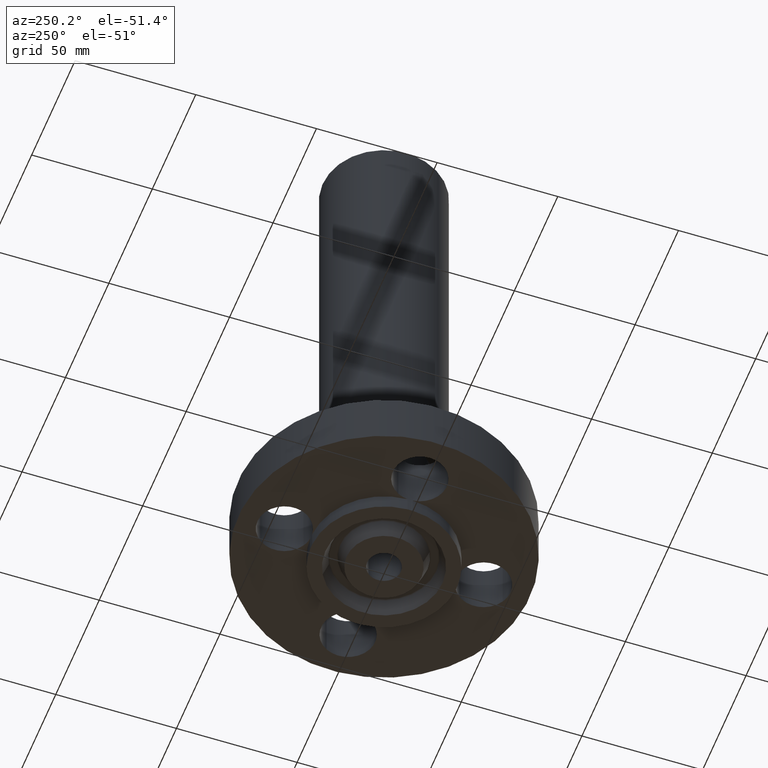
[diagram: clean part render]
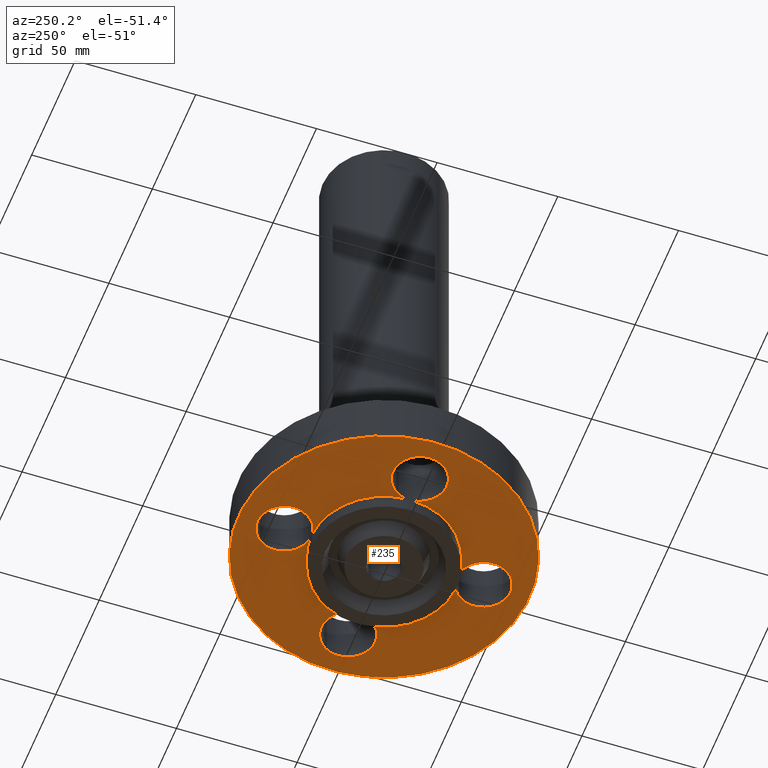
[diagram: same view with one face highlighted and labeled with its STEP entity id]
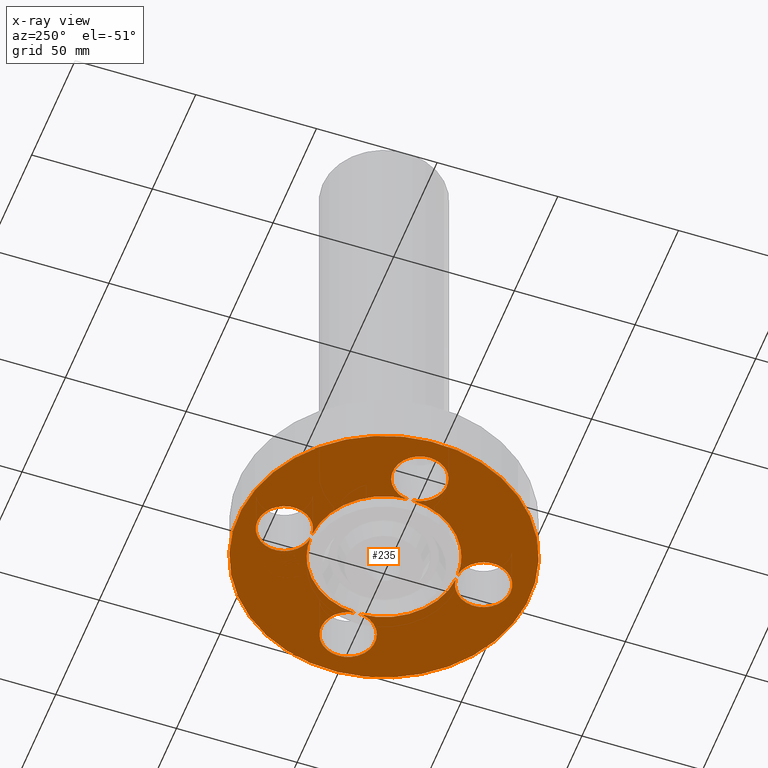
[diagram: x-ray of the same camera — body ghosted, the highlighted face saturated]
A machine part, auxiliary view. The second image highlights one B-rep face of the part: STEP entity #235.
The next image is the same camera in x-ray: the body ghosted, the highlighted face saturated — about 0% of this face is hidden behind the body in this view.
In plain terms, the highlighted planar face has unit normal (0, 0, -1).
Its self-contained STEP definition (entity closure, byte-faithful):
#65=AXIS2_PLACEMENT_3D('Circle Axis2P3D',#63,#64,$) ;
#78=AXIS2_PLACEMENT_3D('Plane Axis2P3D',#75,#76,#77) ;
#82=AXIS2_PLACEMENT_3D('Circle Axis2P3D',#80,#81,$) ;
#91=AXIS2_PLACEMENT_3D('Circle Axis2P3D',#89,#90,$) ;
#100=AXIS2_PLACEMENT_3D('Circle Axis2P3D',#98,#99,$) ;
#109=AXIS2_PLACEMENT_3D('Circle Axis2P3D',#107,#108,$) ;
#116=AXIS2_PLACEMENT_3D('Circle Axis2P3D',#114,#115,$) ;
#123=AXIS2_PLACEMENT_3D('Circle Axis2P3D',#121,#122,$) ;
#130=AXIS2_PLACEMENT_3D('Circle Axis2P3D',#128,#129,$) ;
#137=AXIS2_PLACEMENT_3D('Circle Axis2P3D',#135,#136,$) ;
#144=AXIS2_PLACEMENT_3D('Circle Axis2P3D',#142,#143,$) ;
#149=AXIS2_PLACEMENT_3D('Circle Axis2P3D',#147,#148,$) ;
#156=AXIS2_PLACEMENT_3D('Circle Axis2P3D',#154,#155,$) ;
#163=AXIS2_PLACEMENT_3D('Circle Axis2P3D',#161,#162,$) ;
#170=AXIS2_PLACEMENT_3D('Circle Axis2P3D',#168,#169,$) ;
#177=AXIS2_PLACEMENT_3D('Circle Axis2P3D',#175,#176,$) ;
#184=AXIS2_PLACEMENT_3D('Circle Axis2P3D',#182,#183,$) ;
#191=AXIS2_PLACEMENT_3D('Circle Axis2P3D',#189,#190,$) ;
#198=AXIS2_PLACEMENT_3D('Circle Axis2P3D',#196,#197,$) ;
#205=AXIS2_PLACEMENT_3D('Circle Axis2P3D',#203,#204,$) ;
#212=AXIS2_PLACEMENT_3D('Circle Axis2P3D',#210,#211,$) ;
#46=CARTESIAN_POINT('Vertex',(1.23886367277,-0.210947236987,2.2401153548E-016)) ;
#60=CARTESIAN_POINT('Vertex',(2.01113632724,0.210947236987,2.2401153548E-016)) ;
#63=CARTESIAN_POINT('Axis2P3D Location',(1.62500000001,0.,0.)) ;
#75=CARTESIAN_POINT('Axis2P3D Location',(0.,0.736137156452,0.)) ;
#80=CARTESIAN_POINT('Axis2P3D Location',(0.,0.,0.)) ;
#84=CARTESIAN_POINT('Vertex',(-1.13863565419,-2.0842585845,0.)) ;
#86=CARTESIAN_POINT('Vertex',(1.13863565419,2.0842585845,0.)) ;
#89=CARTESIAN_POINT('Axis2P3D Location',(0.,0.,0.)) ;
#98=CARTESIAN_POINT('Axis2P3D Location',(0.,0.,0.)) ;
#102=CARTESIAN_POINT('Vertex',(-0.569317827095,-1.04212929225,0.)) ;
#104=CARTESIAN_POINT('Vertex',(-1.186825,-0.0400333532821,-3.2782175924E-018)) ;
#107=CARTESIAN_POINT('Axis2P3D Location',(0.,0.,0.)) ;
#111=CARTESIAN_POINT('Vertex',(-0.0400333532821,-1.186825,1.42056095671E-017)) ;
#114=CARTESIAN_POINT('Axis2P3D Location',(-3.84644197508E-016,-1.62500000001,0.)) ;
#118=CARTESIAN_POINT('Vertex',(-0.210947236987,-1.23886367277,0.)) ;
#121=CARTESIAN_POINT('Axis2P3D Location',(-2.79741234551E-016,-1.62500000001,0.)) ;
#125=CARTESIAN_POINT('Vertex',(0.210947236987,-2.01113632724,2.2401153548E-016)) ;
#128=CARTESIAN_POINT('Axis2P3D Location',(-3.84644197508E-016,-1.62500000001,0.)) ;
#132=CARTESIAN_POINT('Vertex',(0.0400333532821,-1.186825,1.42056095671E-017)) ;
#135=CARTESIAN_POINT('Axis2P3D Location',(0.,0.,0.)) ;
#139=CARTESIAN_POINT('Vertex',(1.186825,-0.0400333532821,0.)) ;
#142=CARTESIAN_POINT('Axis2P3D Location',(1.62500000001,1.39870617276E-016,0.)) ;
#147=CARTESIAN_POINT('Axis2P3D Location',(1.62500000001,1.39870617276E-016,0.)) ;
#151=CARTESIAN_POINT('Vertex',(1.186825,0.0400333532821,0.)) ;
#154=CARTESIAN_POINT('Axis2P3D Location',(0.,0.,0.)) ;
#158=CARTESIAN_POINT('Vertex',(0.569317827095,1.04212929225,0.)) ;
#161=CARTESIAN_POINT('Axis2P3D Location',(0.,0.,0.)) ;
#165=CARTESIAN_POINT('Vertex',(0.0400333532821,1.186825,1.42056095671E-017)) ;
#168=CARTESIAN_POINT('Axis2P3D Location',(-2.09805925913E-016,1.62500000001,0.)) ;
#172=CARTESIAN_POINT('Vertex',(0.210947236987,1.23886367277,0.)) ;
#175=CARTESIAN_POINT('Axis2P3D Location',(-4.54579506146E-016,1.62500000001,0.)) ;
#179=CARTESIAN_POINT('Vertex',(-0.210947236987,2.01113632724,2.2401153548E-016)) ;
#182=CARTESIAN_POINT('Axis2P3D Location',(-2.09805925913E-016,1.62500000001,0.)) ;
#186=CARTESIAN_POINT('Vertex',(-0.0400333532821,1.186825,1.42056095671E-017)) ;
#189=CARTESIAN_POINT('Axis2P3D Location',(0.,0.,0.)) ;
#193=CARTESIAN_POINT('Vertex',(-1.186825,0.0400333532821,-3.2782175924E-018)) ;
#196=CARTESIAN_POINT('Axis2P3D Location',(-1.62500000001,-1.39870617276E-016,0.)) ;
#200=CARTESIAN_POINT('Vertex',(-1.23886367277,0.210947236987,0.)) ;
#203=CARTESIAN_POINT('Axis2P3D Location',(-1.62500000001,-1.39870617276E-016,0.)) ;
#207=CARTESIAN_POINT('Vertex',(-2.01113632724,-0.210947236987,2.2401153548E-016)) ;
#210=CARTESIAN_POINT('Axis2P3D Location',(-1.62500000001,-1.39870617276E-016,0.)) ;
#64=DIRECTION('Axis2P3D Direction',(0.,-0.,0.0393700787402)) ;
#76=DIRECTION('Axis2P3D Direction',(0.,0.,-0.0393700787402)) ;
#77=DIRECTION('Axis2P3D XDirection',(0.0393700787402,0.,0.)) ;
#81=DIRECTION('Axis2P3D Direction',(0.,0.,-0.0393700787402)) ;
#90=DIRECTION('Axis2P3D Direction',(0.,0.,-0.0393700787402)) ;
#99=DIRECTION('Axis2P3D Direction',(0.,0.,-0.0393700787402)) ;
#108=DIRECTION('Axis2P3D Direction',(0.,0.,-0.0393700787402)) ;
#115=DIRECTION('Axis2P3D Direction',(0.,0.,-0.0393700787402)) ;
#122=DIRECTION('Axis2P3D Direction',(0.,0.,-0.0393700787402)) ;
#129=DIRECTION('Axis2P3D Direction',(0.,0.,-0.0393700787402)) ;
#136=DIRECTION('Axis2P3D Direction',(0.,0.,-0.0393700787402)) ;
#143=DIRECTION('Axis2P3D Direction',(0.,0.,-0.0393700787402)) ;
#148=DIRECTION('Axis2P3D Direction',(0.,0.,-0.0393700787402)) ;
#155=DIRECTION('Axis2P3D Direction',(0.,0.,-0.0393700787402)) ;
#162=DIRECTION('Axis2P3D Direction',(0.,0.,-0.0393700787402)) ;
#169=DIRECTION('Axis2P3D Direction',(0.,0.,-0.0393700787402)) ;
#176=DIRECTION('Axis2P3D Direction',(0.,0.,-0.0393700787402)) ;
#183=DIRECTION('Axis2P3D Direction',(0.,0.,-0.0393700787402)) ;
#190=DIRECTION('Axis2P3D Direction',(0.,0.,-0.0393700787402)) ;
#197=DIRECTION('Axis2P3D Direction',(0.,0.,-0.0393700787402)) ;
#204=DIRECTION('Axis2P3D Direction',(0.,0.,-0.0393700787402)) ;
#211=DIRECTION('Axis2P3D Direction',(0.,0.,-0.0393700787402)) ;
#95=ORIENTED_EDGE('',*,*,#88,.T.) ;
#96=ORIENTED_EDGE('',*,*,#93,.T.) ;
#216=ORIENTED_EDGE('',*,*,#106,.F.) ;
#217=ORIENTED_EDGE('',*,*,#113,.F.) ;
#218=ORIENTED_EDGE('',*,*,#120,.F.) ;
#219=ORIENTED_EDGE('',*,*,#127,.F.) ;
#220=ORIENTED_EDGE('',*,*,#134,.F.) ;
#221=ORIENTED_EDGE('',*,*,#141,.F.) ;
#222=ORIENTED_EDGE('',*,*,#146,.F.) ;
#223=ORIENTED_EDGE('',*,*,#67,.F.) ;
#224=ORIENTED_EDGE('',*,*,#153,.F.) ;
#225=ORIENTED_EDGE('',*,*,#160,.F.) ;
#226=ORIENTED_EDGE('',*,*,#167,.F.) ;
#227=ORIENTED_EDGE('',*,*,#174,.F.) ;
#228=ORIENTED_EDGE('',*,*,#181,.F.) ;
#229=ORIENTED_EDGE('',*,*,#188,.F.) ;
#230=ORIENTED_EDGE('',*,*,#195,.F.) ;
#231=ORIENTED_EDGE('',*,*,#202,.F.) ;
#232=ORIENTED_EDGE('',*,*,#209,.F.) ;
#233=ORIENTED_EDGE('',*,*,#214,.F.) ;
#234=FACE_BOUND('',#215,.T.) ;
#235=ADVANCED_FACE('PartBody',(#97,#234),#79,.T.) ;
#66=CIRCLE('generated circle',#65,0.440000000002) ;
#83=CIRCLE('generated circle',#82,2.37500000001) ;
#92=CIRCLE('generated circle',#91,2.37500000001) ;
#101=CIRCLE('generated circle',#100,1.1875) ;
#110=CIRCLE('generated circle',#109,1.1875) ;
#117=CIRCLE('generated circle',#116,0.440000000002) ;
#124=CIRCLE('generated circle',#123,0.440000000002) ;
#131=CIRCLE('generated circle',#130,0.440000000002) ;
#138=CIRCLE('generated circle',#137,1.1875) ;
#145=CIRCLE('generated circle',#144,0.440000000002) ;
#150=CIRCLE('generated circle',#149,0.440000000002) ;
#157=CIRCLE('generated circle',#156,1.1875) ;
#164=CIRCLE('generated circle',#163,1.1875) ;
#171=CIRCLE('generated circle',#170,0.440000000002) ;
#178=CIRCLE('generated circle',#177,0.440000000002) ;
#185=CIRCLE('generated circle',#184,0.440000000002) ;
#192=CIRCLE('generated circle',#191,1.1875) ;
#199=CIRCLE('generated circle',#198,0.440000000002) ;
#206=CIRCLE('generated circle',#205,0.440000000002) ;
#213=CIRCLE('generated circle',#212,0.440000000002) ;
#67=EDGE_CURVE('',#61,#47,#66,.F.) ;
#88=EDGE_CURVE('',#85,#87,#83,.T.) ;
#93=EDGE_CURVE('',#87,#85,#92,.T.) ;
#106=EDGE_CURVE('',#103,#105,#101,.T.) ;
#113=EDGE_CURVE('',#112,#103,#110,.T.) ;
#120=EDGE_CURVE('',#119,#112,#117,.T.) ;
#127=EDGE_CURVE('',#126,#119,#124,.T.) ;
#134=EDGE_CURVE('',#133,#126,#131,.T.) ;
#141=EDGE_CURVE('',#140,#133,#138,.T.) ;
#146=EDGE_CURVE('',#47,#140,#145,.T.) ;
#153=EDGE_CURVE('',#152,#61,#150,.T.) ;
#160=EDGE_CURVE('',#159,#152,#157,.T.) ;
#167=EDGE_CURVE('',#166,#159,#164,.T.) ;
#174=EDGE_CURVE('',#173,#166,#171,.T.) ;
#181=EDGE_CURVE('',#180,#173,#178,.T.) ;
#188=EDGE_CURVE('',#187,#180,#185,.T.) ;
#195=EDGE_CURVE('',#194,#187,#192,.T.) ;
#202=EDGE_CURVE('',#201,#194,#199,.T.) ;
#209=EDGE_CURVE('',#208,#201,#206,.T.) ;
#214=EDGE_CURVE('',#105,#208,#213,.T.) ;
#94=EDGE_LOOP('',(#95,#96)) ;
#215=EDGE_LOOP('',(#216,#217,#218,#219,#220,#221,#222,#223,#224,#225,#226,#227,#228,#229,#230,#231,#232,#233)) ;
#97=FACE_OUTER_BOUND('',#94,.T.) ;
#79=PLANE('',#78) ;
#47=VERTEX_POINT('',#46) ;
#61=VERTEX_POINT('',#60) ;
#85=VERTEX_POINT('',#84) ;
#87=VERTEX_POINT('',#86) ;
#103=VERTEX_POINT('',#102) ;
#105=VERTEX_POINT('',#104) ;
#112=VERTEX_POINT('',#111) ;
#119=VERTEX_POINT('',#118) ;
#126=VERTEX_POINT('',#125) ;
#133=VERTEX_POINT('',#132) ;
#140=VERTEX_POINT('',#139) ;
#152=VERTEX_POINT('',#151) ;
#159=VERTEX_POINT('',#158) ;
#166=VERTEX_POINT('',#165) ;
#173=VERTEX_POINT('',#172) ;
#180=VERTEX_POINT('',#179) ;
#187=VERTEX_POINT('',#186) ;
#194=VERTEX_POINT('',#193) ;
#201=VERTEX_POINT('',#200) ;
#208=VERTEX_POINT('',#207) ;